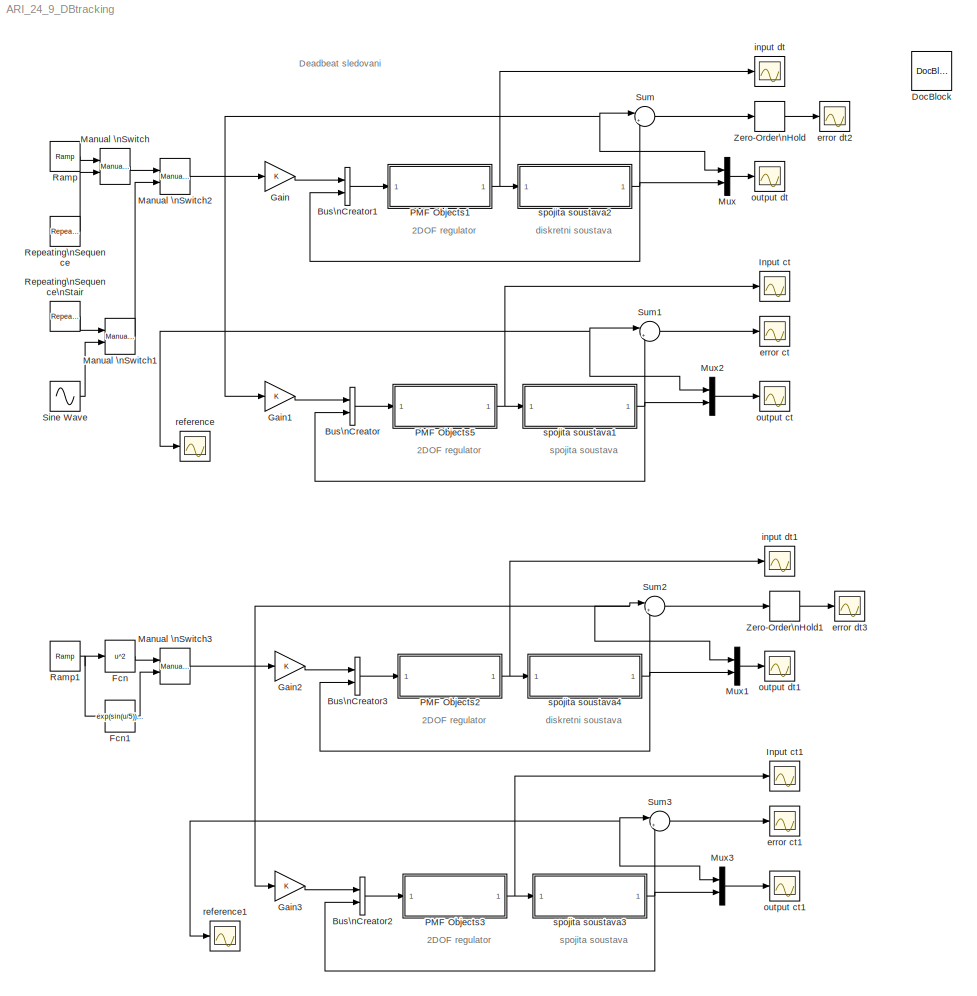
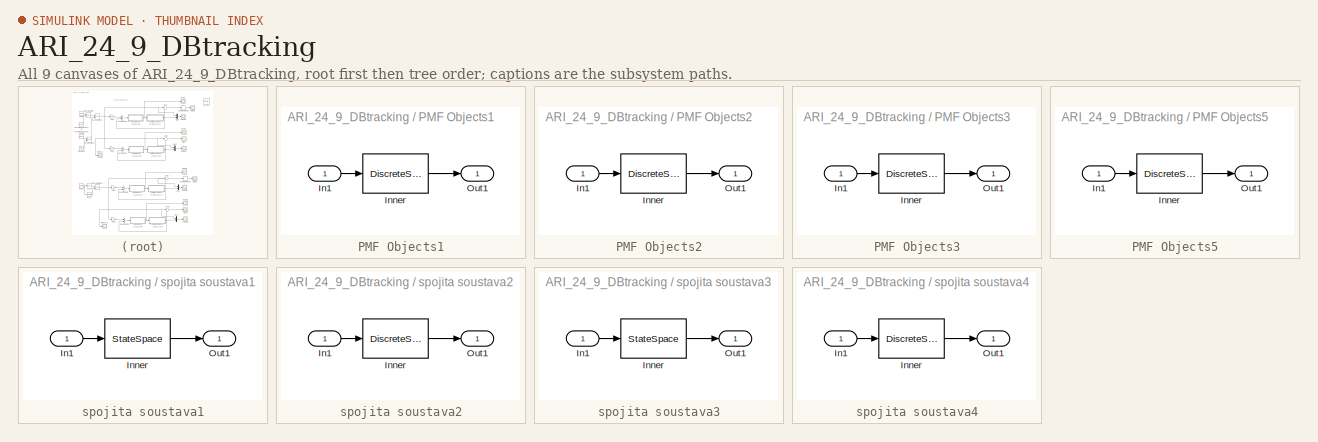
[diagram: thumbnail index - all 9 canvases of the model, root first then tree order]
MODEL ARI_24_9_DBtracking
KIND model
BLOCK [BusCreator] Bus\nCreator
  DisplayOption = bar
  Inputs = 2
  Ports = [2, 1]
  SID = 1
BLOCK [BusCreator] Bus\nCreator1
  DisplayOption = bar
  Inputs = 2
  Ports = [2, 1]
  SID = 2
BLOCK [BusCreator] Bus\nCreator2
  DisplayOption = bar
  Inputs = 2
  Ports = [2, 1]
  SID = 3
BLOCK [BusCreator] Bus\nCreator3
  DisplayOption = bar
  Inputs = 2
  Ports = [2, 1]
  SID = 4
BLOCK [Reference] DocBlock  REF=simulink/Model-Wide\nUtilities/DocBlock
  DocumentType = Text
  Ports = []
  SID = 76
  SourceBlock = simulink/Model-Wide\nUtilities/DocBlock
  SourceType = DocBlock
  UserData = DataTag0
  UserDataPersistent = on
BLOCK [Fcn] Fcn
  Expr = u^2
  SID = 5
BLOCK [Fcn] Fcn1
  Expr = exp(sin(u/5))*sin(u/2)
  SID = 6
BLOCK [Gain] Gain
  OutDataTypeStr = Inherit: Inherit via internal rule
  ParamDataTypeStr = Inherit: Inherit via internal rule
  SID = 7
  SampleTime = h
  SaturateOnIntegerOverflow = off
BLOCK [Gain] Gain1
  OutDataTypeStr = Inherit: Inherit via internal rule
  ParamDataTypeStr = Inherit: Inherit via internal rule
  SID = 8
  SaturateOnIntegerOverflow = off
BLOCK [Gain] Gain2
  OutDataTypeStr = Inherit: Inherit via internal rule
  ParamDataTypeStr = Inherit: Inherit via internal rule
  SID = 9
  SampleTime = h
  SaturateOnIntegerOverflow = off
BLOCK [Gain] Gain3
  OutDataTypeStr = Inherit: Inherit via internal rule
  ParamDataTypeStr = Inherit: Inherit via internal rule
  SID = 10
  SaturateOnIntegerOverflow = off
BLOCK [Scope] Input ct
  DataFormat = Array
  Floating = off
  NumInputPorts = 1
  Ports = [1]
  SID = 11
  SampleTime = 0
  SaveName = ScopeData1
  TickLabels = on
  TimeRange = 2
  YMax = 2000
  YMin = -2000
  ZoomMode = xonly
BLOCK [Scope] Input ct1
  DataFormat = Array
  Floating = off
  NumInputPorts = 1
  Ports = [1]
  SID = 12
  SampleTime = 0
  SaveName = ScopeData7
  TickLabels = on
  TimeRange = 2
  YMax = 2000
  YMin = -2000
BLOCK [Reference] Manual \nSwitch  REF=simulink/Signal\nRouting/Manual Switch
  Ports = [2, 1]
  SID = 13
  SourceBlock = simulink/Signal\nRouting/Manual Switch
  SourceType = Manual Switch
  action = 0
  sw = 1
  varsize = off
BLOCK [Reference] Manual \nSwitch1  REF=simulink/Signal\nRouting/Manual Switch
  Ports = [2, 1]
  SID = 14
  SourceBlock = simulink/Signal\nRouting/Manual Switch
  SourceType = Manual Switch
  action = 0
  sw = 0
  varsize = off
BLOCK [Reference] Manual \nSwitch2  REF=simulink/Signal\nRouting/Manual Switch
  Ports = [2, 1]
  SID = 15
  SourceBlock = simulink/Signal\nRouting/Manual Switch
  SourceType = Manual Switch
  action = 0
  sw = 1
  varsize = off
BLOCK [Reference] Manual \nSwitch3  REF=simulink/Signal\nRouting/Manual Switch
  Ports = [2, 1]
  SID = 16
  SourceBlock = simulink/Signal\nRouting/Manual Switch
  SourceType = Manual Switch
  action = 0
  sw = 1
  varsize = off
BLOCK [Mux] Mux
  DisplayOption = bar
  Inputs = 2
  Ports = [2, 1]
  SID = 18
BLOCK [Mux] Mux1
  DisplayOption = bar
  Inputs = 2
  Ports = [2, 1]
  SID = 19
BLOCK [Mux] Mux2
  DisplayOption = bar
  Inputs = 2
  Ports = [2, 1]
  SID = 20
BLOCK [Mux] Mux3
  DisplayOption = bar
  Inputs = 2
  Ports = [2, 1]
  SID = 21
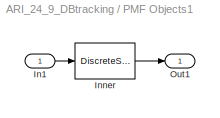
BLOCK [SubSystem] PMF Objects1
  FunctionWithSeparateData = off
  MaskCallbackString = |||
  MaskDescription = Polynomial matrix fraction description of a linear system.\n\nThis block represents a linear system defined by the polynomial matrix fraction of its transfer function.
  MaskDisplay = disp(Label);\n
  MaskEnableString = on,on,on,on
  MaskHelp = This block represents a linear system [<I>A,B,C,D</I>] defined by the polynomial matrix fraction (<I>PMF</I>) of its transfer function <I>T</I>.  \n<p>\n<b>Left Matrix Fraction</b> item of the popup menu <b>Type</b> indicates the transfer function in the form of <I>left PMF</I>:  \n<p>\n<I>T</I> = inv(<I>Q</I>) <I>P</I>.\n<p> \n<b>Right Matrix Fraction</b> item is used if the transfer function is ...<+1109ch>  <repeated x8 — deduplicated; at blocks: PMF Objects1, PMF Objects2, PMF Objects3, PMF Objects5, spojita soustava1, spojita soustava2, spojita soustava3, spojita soustava4>
  MaskHideContents = off
  MaskIconFrame = on
  MaskIconOpaque = on
  MaskIconRotate = none
  MaskIconUnits = autoscale
  MaskInitialization = Label = 'xxx';\n[A,B,C,D,Label,var] = polymask2(F, fvar, length(InCon));\nupdate;\n
  MaskPortRotate = default
  MaskPromptString = PMF Object:|Initial states:|Sample time (discrete time only):|Force variable:
  MaskStyleString = edit,edit,edit,popup(No change|s   (continous time)|p   (continous time)|z      (discrete time)|q      (discrete time)|d      (discrete time)|z^-1 (discrete time))
  MaskToolTipString = on,on,on,on
  MaskTunableValueString = on,on,on,on
  MaskType = PMF Block
  MaskValueString = [r -q]/p|[ ]|h|No change
  MaskVariables = F=&1;InCon=@2;SampTime=@3;fvar=@4;
  MaskVisibilityString = on,on,on,on
  MinAlgLoopOccurrences = off
  Opaque = off
  Ports = [1, 1]
  PropExecContextOutsideSubsystem = off
  RTWSystemCode = Auto
  RequestExecContextInheritance = off
  SID = 22
BLOCK [Inport] PMF Objects1/In1
  IconDisplay = Port number
  SID = 23
BLOCK [DiscreteStateSpace] PMF Objects1/Inner
  A = A
  B = B
  C = C
  D = D
  SID = 24
  SampleTime = SampTime
  X0 = InCon
BLOCK [Outport] PMF Objects1/Out1
  IconDisplay = Port number
  SID = 25
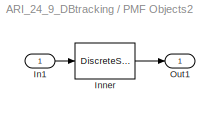
BLOCK [SubSystem] PMF Objects2
  FunctionWithSeparateData = off
  MaskCallbackString = |||
  MaskDescription = Polynomial matrix fraction description of a linear system.\n\nThis block represents a linear system defined by the polynomial matrix fraction of its transfer function.
  MaskDisplay = disp(Label);\n
  MaskEnableString = on,on,on,on
  MaskHideContents = off
  MaskIconFrame = on
  MaskIconOpaque = on
  MaskIconRotate = none
  MaskIconUnits = autoscale
  MaskInitialization = Label = 'xxx';\n[A,B,C,D,Label,var] = polymask2(F, fvar, length(InCon));\nupdate;\n
  MaskPortRotate = default
  MaskPromptString = PMF Object:|Initial states:|Sample time (discrete time only):|Force variable:
  MaskStyleString = edit,edit,edit,popup(No change|s   (continous time)|p   (continous time)|z      (discrete time)|q      (discrete time)|d      (discrete time)|z^-1 (discrete time))
  MaskToolTipString = on,on,on,on
  MaskTunableValueString = on,on,on,on
  MaskType = PMF Block
  MaskValueString = [r -q]/p|[ ]|h|No change
  MaskVariables = F=&1;InCon=@2;SampTime=@3;fvar=@4;
  MaskVisibilityString = on,on,on,on
  MinAlgLoopOccurrences = off
  Opaque = off
  Ports = [1, 1]
  PropExecContextOutsideSubsystem = off
  RTWSystemCode = Auto
  RequestExecContextInheritance = off
  SID = 26
BLOCK [Inport] PMF Objects2/In1
  IconDisplay = Port number
  SID = 27
BLOCK [DiscreteStateSpace] PMF Objects2/Inner
  A = A
  B = B
  C = C
  D = D
  SID = 28
  SampleTime = SampTime
  X0 = InCon
BLOCK [Outport] PMF Objects2/Out1
  IconDisplay = Port number
  SID = 29
BLOCK [SubSystem] PMF Objects3
  FunctionWithSeparateData = off
  MaskCallbackString = |||
  MaskDescription = Polynomial matrix fraction description of a linear system.\n\nThis block represents a linear system defined by the polynomial matrix fraction of its transfer function.
  MaskDisplay = disp(Label);\n
  MaskEnableString = on,on,on,on
  MaskHideContents = off
  MaskIconFrame = on
  MaskIconOpaque = on
  MaskIconRotate = none
  MaskIconUnits = autoscale
  MaskInitialization = Label = 'xxx';\n[A,B,C,D,Label,var] = polymask2(F, fvar, length(InCon));\nupdate;\n
  MaskPortRotate = default
  MaskPromptString = PMF Object:|Initial states:|Sample time (discrete time only):|Force variable:
  MaskStyleString = edit,edit,edit,popup(No change|s   (continous time)|p   (continous time)|z      (discrete time)|q      (discrete time)|d      (discrete time)|z^-1 (discrete time))
  MaskToolTipString = on,on,on,on
  MaskTunableValueString = on,on,on,on
  MaskType = PMF Block
  MaskValueString = [r -q]/p|[ ]|h|No change
  MaskVariables = F=&1;InCon=@2;SampTime=@3;fvar=@4;
  MaskVisibilityString = on,on,on,on
  MinAlgLoopOccurrences = off
  Opaque = off
  Ports = [1, 1]
  PropExecContextOutsideSubsystem = off
  RTWSystemCode = Auto
  RequestExecContextInheritance = off
  SID = 30
BLOCK [Inport] PMF Objects3/In1
  IconDisplay = Port number
  SID = 31
BLOCK [DiscreteStateSpace] PMF Objects3/Inner
  A = A
  B = B
  C = C
  D = D
  SID = 32
  SampleTime = SampTime
  X0 = InCon
BLOCK [Outport] PMF Objects3/Out1
  IconDisplay = Port number
  SID = 33
BLOCK [SubSystem] PMF Objects5
  FunctionWithSeparateData = off
  MaskCallbackString = |||
  MaskDescription = Polynomial matrix fraction description of a linear system.\n\nThis block represents a linear system defined by the polynomial matrix fraction of its transfer function.
  MaskDisplay = disp(Label);\n
  MaskEnableString = on,on,on,on
  MaskHideContents = off
  MaskIconFrame = on
  MaskIconOpaque = on
  MaskIconRotate = none
  MaskIconUnits = autoscale
  MaskInitialization = Label = 'xxx';\n[A,B,C,D,Label,var] = polymask2(F, fvar, length(InCon));\nupdate;\n
  MaskPortRotate = default
  MaskPromptString = PMF Object:|Initial states:|Sample time (discrete time only):|Force variable:
  MaskStyleString = edit,edit,edit,popup(No change|s   (continous time)|p   (continous time)|z      (discrete time)|q      (discrete time)|d      (discrete time)|z^-1 (discrete time))
  MaskToolTipString = on,on,on,on
  MaskTunableValueString = on,on,on,on
  MaskType = PMF Block
  MaskValueString = [r -q]/p|[ ]|h|No change
  MaskVariables = F=&1;InCon=@2;SampTime=@3;fvar=@4;
  MaskVisibilityString = on,on,on,on
  MinAlgLoopOccurrences = off
  Opaque = off
  Ports = [1, 1]
  PropExecContextOutsideSubsystem = off
  RTWSystemCode = Auto
  RequestExecContextInheritance = off
  SID = 34
BLOCK [Inport] PMF Objects5/In1
  IconDisplay = Port number
  SID = 35
BLOCK [DiscreteStateSpace] PMF Objects5/Inner
  A = A
  B = B
  C = C
  D = D
  SID = 36
  SampleTime = SampTime
  X0 = InCon
BLOCK [Outport] PMF Objects5/Out1
  IconDisplay = Port number
  SID = 37
BLOCK [Reference] Ramp  REF=simulink/Sources/Ramp
  Ports = [0, 1]
  SID = 38
  SourceBlock = simulink/Sources/Ramp
  SourceType = Ramp
  VectorParams1D = on
  X0 = 0
  slope = 1
  start = 0
BLOCK [Reference] Ramp1  REF=simulink/Sources/Ramp
  Ports = [0, 1]
  SID = 39
  SourceBlock = simulink/Sources/Ramp
  SourceType = Ramp
  VectorParams1D = on
  X0 = 0
  slope = 1
  start = 0
BLOCK [Reference] Repeating\nSequence  REF=simulink/Sources/Repeating\nSequence
  Ports = [0, 1]
  SID = 40
  SourceBlock = simulink/Sources/Repeating\nSequence
  SourceType = Repeating table
  rep_seq_t = [0 8]
  rep_seq_y = [0 5]
BLOCK [Reference] Repeating\nSequence\nStair  REF=simulink/Sources/Repeating\nSequence\nStair
  ConRadixGroup = Best Precision: Vector-wise
  LockScale = off
  OutDataType = float('double')
  OutDataTypeStr = float('double')
  OutMax = []
  OutMin = []
  OutScaling = 2^-12
  OutValues = [3 1  4 2   1].'
  OutputDataTypeScalingMode = Specify via dialog
  Ports = [0, 1]
  SID = 41
  SourceBlock = simulink/Sources/Repeating\nSequence\nStair
  SourceType = Repeating Sequence Stair
  tsamp = 10
BLOCK [Sin] Sine Wave
  Frequency = .5
  Ports = [0, 1]
  SID = 42
  SampleTime = 0
BLOCK [Sum] Sum
  IconShape = round
  InputSameDT = off
  Inputs = |+-
  OutDataTypeStr = Inherit: Inherit via internal rule
  Ports = [2, 1]
  SID = 43
  SaturateOnIntegerOverflow = off
BLOCK [Sum] Sum1
  IconShape = round
  InputSameDT = off
  Inputs = |+-
  OutDataTypeStr = Inherit: Inherit via internal rule
  Ports = [2, 1]
  SID = 44
  SaturateOnIntegerOverflow = off
BLOCK [Sum] Sum2
  IconShape = round
  InputSameDT = off
  Inputs = |+-
  OutDataTypeStr = Inherit: Inherit via internal rule
  Ports = [2, 1]
  SID = 45
  SaturateOnIntegerOverflow = off
BLOCK [Sum] Sum3
  IconShape = round
  InputSameDT = off
  Inputs = |+-
  OutDataTypeStr = Inherit: Inherit via internal rule
  Ports = [2, 1]
  SID = 46
  SaturateOnIntegerOverflow = off
BLOCK [ZeroOrderHold] Zero-Order\nHold
  SID = 77
  SampleTime = h
BLOCK [ZeroOrderHold] Zero-Order\nHold1
  SID = 79
  SampleTime = h
BLOCK [Scope] error ct
  DataFormat = Array
  Floating = off
  NumInputPorts = 1
  Ports = [1]
  SID = 47
  SampleTime = 0
  SaveName = ScopeData5
  TickLabels = on
  TimeRange = 2
  YMax = 2000
  YMin = -2000
BLOCK [Scope] error ct1
  DataFormat = Array
  Floating = off
  NumInputPorts = 1
  Ports = [1]
  SID = 48
  SampleTime = 0
  SaveName = ScopeData8
  TickLabels = on
  TimeRange = 2
  YMax = 2000
  YMin = -2000
BLOCK [Scope] error dt2
  DataFormat = Array
  Floating = off
  NumInputPorts = 1
  Ports = [1]
  SID = 78
  SampleTime = 0
  SaveName = ScopeData14
  TickLabels = on
  TimeRange = 2
  YMax = 2000
  YMin = -2000
  ZoomMode = xonly
BLOCK [Scope] error dt3
  DataFormat = Array
  Floating = off
  NumInputPorts = 1
  Ports = [1]
  SID = 80
  SampleTime = 0
  SaveName = ScopeData15
  TickLabels = on
  TimeRange = 2
  YMax = 2000
  YMin = -2000
  ZoomMode = xonly
BLOCK [Scope] input dt
  DataFormat = Array
  Floating = off
  NumInputPorts = 1
  Ports = [1]
  SID = 51
  SampleTime = 0
  TickLabels = on
  TimeRange = 2
  YMax = 2000
  YMin = -2000
  ZoomMode = xonly
BLOCK [Scope] input dt1
  DataFormat = Array
  Floating = off
  NumInputPorts = 1
  Ports = [1]
  SID = 52
  SampleTime = 0
  SaveName = ScopeData10
  TickLabels = on
  TimeRange = 2
  YMax = 2000
  YMin = -2000
  ZoomMode = xonly
BLOCK [Scope] output ct
  DataFormat = Array
  Floating = off
  NumInputPorts = 1
  Ports = [1]
  SID = 53
  SampleTime = 0
  SaveName = ScopeData2
  TickLabels = on
  TimeRange = 2
  YMax = 3
  YMin = -1
  ZoomMode = xonly
BLOCK [Scope] output ct1
  DataFormat = Array
  Floating = off
  NumInputPorts = 1
  Ports = [1]
  SID = 54
  SampleTime = 0
  SaveName = ScopeData11
  TickLabels = on
  TimeRange = 2
  YMax = 3
  YMin = -1
  ZoomMode = xonly
BLOCK [Scope] output dt
  DataFormat = Array
  Floating = off
  NumInputPorts = 1
  Ports = [1]
  SID = 55
  SampleTime = 0
  SaveName = ScopeData3
  TickLabels = on
  TimeRange = 2
  YMax = 3
  YMin = -1
BLOCK [Scope] output dt1
  DataFormat = Array
  Floating = off
  NumInputPorts = 1
  Ports = [1]
  SID = 56
  SampleTime = 0
  SaveName = ScopeData12
  TickLabels = on
  TimeRange = 2
  YMax = 3
  YMin = -1
BLOCK [Scope] reference
  DataFormat = Array
  Floating = off
  NumInputPorts = 1
  Ports = [1]
  SID = 57
  SampleTime = 0
  SaveName = ScopeData6
  TickLabels = on
  TimeRange = 2
  YMax = 2000
  YMin = -2000
  ZoomMode = xonly
BLOCK [Scope] reference1
  DataFormat = Array
  Floating = off
  NumInputPorts = 1
  Ports = [1]
  SID = 58
  SampleTime = 0
  SaveName = ScopeData13
  TickLabels = on
  TimeRange = 2
  YMax = 2000
  YMin = -2000
  ZoomMode = xonly
BLOCK [SubSystem] spojita soustava1
  FunctionWithSeparateData = off
  MaskCallbackString = |||
  MaskDescription = Polynomial matrix fraction description of a linear system.\n\nThis block represents a linear system defined by the polynomial matrix fraction of its transfer function.
  MaskDisplay = disp(Label);\n
  MaskEnableString = on,on,on,on
  MaskHideContents = off
  MaskIconFrame = on
  MaskIconOpaque = on
  MaskIconRotate = none
  MaskIconUnits = autoscale
  MaskInitialization = Label = 'xxx';\n[A,B,C,D,Label,var] = polymask2(F, fvar, length(InCon));\nupdate;\n
  MaskPortRotate = default
  MaskPromptString = PMF Object:|Initial states:|Sample time (discrete time only):|Force variable:
  MaskStyleString = edit,edit,edit,popup(No change|s   (continous time)|p   (continous time)|z      (discrete time)|q      (discrete time)|d      (discrete time)|z^-1 (discrete time))
  MaskToolTipString = on,on,on,on
  MaskTunableValueString = on,on,on,on
  MaskType = PMF Block
  MaskValueString = 1/s^2|[ ]|h|No change
  MaskVariables = F=&1;InCon=@2;SampTime=@3;fvar=@4;
  MaskVisibilityString = on,on,on,on
  MinAlgLoopOccurrences = off
  Opaque = off
  Ports = [1, 1]
  PropExecContextOutsideSubsystem = off
  RTWSystemCode = Auto
  RequestExecContextInheritance = off
  SID = 59
BLOCK [Inport] spojita soustava1/In1
  IconDisplay = Port number
  SID = 60
BLOCK [StateSpace] spojita soustava1/Inner
  A = A
  B = B
  C = C
  D = D
  SID = 61
  X0 = InCon
BLOCK [Outport] spojita soustava1/Out1
  IconDisplay = Port number
  SID = 62
BLOCK [SubSystem] spojita soustava2
  FunctionWithSeparateData = off
  MaskCallbackString = |||
  MaskDescription = Polynomial matrix fraction description of a linear system.\n\nThis block represents a linear system defined by the polynomial matrix fraction of its transfer function.
  MaskDisplay = disp(Label);\n
  MaskEnableString = on,on,on,on
  MaskHideContents = off
  MaskIconFrame = on
  MaskIconOpaque = on
  MaskIconRotate = none
  MaskIconUnits = autoscale
  MaskInitialization = Label = 'xxx';\n[A,B,C,D,Label,var] = polymask2(F, fvar, length(InCon));\nupdate;\n
  MaskPortRotate = default
  MaskPromptString = PMF Object:|Initial states:|Sample time (discrete time only):|Force variable:
  MaskStyleString = edit,edit,edit,popup(No change|s   (continous time)|p   (continous time)|z      (discrete time)|q      (discrete time)|d      (discrete time)|z^-1 (discrete time))
  MaskToolTipString = on,on,on,on
  MaskTunableValueString = on,on,on,on
  MaskType = PMF Block
  MaskValueString = b/a|[ ]|h|No change
  MaskVariables = F=&1;InCon=@2;SampTime=@3;fvar=@4;
  MaskVisibilityString = on,on,on,on
  MinAlgLoopOccurrences = off
  Opaque = off
  Ports = [1, 1]
  PropExecContextOutsideSubsystem = off
  RTWSystemCode = Auto
  RequestExecContextInheritance = off
  SID = 63
BLOCK [Inport] spojita soustava2/In1
  IconDisplay = Port number
  SID = 64
BLOCK [DiscreteStateSpace] spojita soustava2/Inner
  A = A
  B = B
  C = C
  D = D
  SID = 65
  SampleTime = SampTime
  X0 = InCon
BLOCK [Outport] spojita soustava2/Out1
  IconDisplay = Port number
  SID = 66
BLOCK [SubSystem] spojita soustava3
  FunctionWithSeparateData = off
  MaskCallbackString = |||
  MaskDescription = Polynomial matrix fraction description of a linear system.\n\nThis block represents a linear system defined by the polynomial matrix fraction of its transfer function.
  MaskDisplay = disp(Label);\n
  MaskEnableString = on,on,on,on
  MaskHideContents = off
  MaskIconFrame = on
  MaskIconOpaque = on
  MaskIconRotate = none
  MaskIconUnits = autoscale
  MaskInitialization = Label = 'xxx';\n[A,B,C,D,Label,var] = polymask2(F, fvar, length(InCon));\nupdate;\n
  MaskPortRotate = default
  MaskPromptString = PMF Object:|Initial states:|Sample time (discrete time only):|Force variable:
  MaskStyleString = edit,edit,edit,popup(No change|s   (continous time)|p   (continous time)|z      (discrete time)|q      (discrete time)|d      (discrete time)|z^-1 (discrete time))
  MaskToolTipString = on,on,on,on
  MaskTunableValueString = on,on,on,on
  MaskType = PMF Block
  MaskValueString = 1/s^2|[ ]|h|No change
  MaskVariables = F=&1;InCon=@2;SampTime=@3;fvar=@4;
  MaskVisibilityString = on,on,on,on
  MinAlgLoopOccurrences = off
  Opaque = off
  Ports = [1, 1]
  PropExecContextOutsideSubsystem = off
  RTWSystemCode = Auto
  RequestExecContextInheritance = off
  SID = 67
BLOCK [Inport] spojita soustava3/In1
  IconDisplay = Port number
  SID = 68
BLOCK [StateSpace] spojita soustava3/Inner
  A = A
  B = B
  C = C
  D = D
  SID = 69
  X0 = InCon
BLOCK [Outport] spojita soustava3/Out1
  IconDisplay = Port number
  SID = 70
BLOCK [SubSystem] spojita soustava4
  FunctionWithSeparateData = off
  MaskCallbackString = |||
  MaskDescription = Polynomial matrix fraction description of a linear system.\n\nThis block represents a linear system defined by the polynomial matrix fraction of its transfer function.
  MaskDisplay = disp(Label);\n
  MaskEnableString = on,on,on,on
  MaskHideContents = off
  MaskIconFrame = on
  MaskIconOpaque = on
  MaskIconRotate = none
  MaskIconUnits = autoscale
  MaskInitialization = Label = 'xxx';\n[A,B,C,D,Label,var] = polymask2(F, fvar, length(InCon));\nupdate;\n
  MaskPortRotate = default
  MaskPromptString = PMF Object:|Initial states:|Sample time (discrete time only):|Force variable:
  MaskStyleString = edit,edit,edit,popup(No change|s   (continous time)|p   (continous time)|z      (discrete time)|q      (discrete time)|d      (discrete time)|z^-1 (discrete time))
  MaskToolTipString = on,on,on,on
  MaskTunableValueString = on,on,on,on
  MaskType = PMF Block
  MaskValueString = b/a|[ ]|h|No change
  MaskVariables = F=&1;InCon=@2;SampTime=@3;fvar=@4;
  MaskVisibilityString = on,on,on,on
  MinAlgLoopOccurrences = off
  Opaque = off
  Ports = [1, 1]
  PropExecContextOutsideSubsystem = off
  RTWSystemCode = Auto
  RequestExecContextInheritance = off
  SID = 71
BLOCK [Inport] spojita soustava4/In1
  IconDisplay = Port number
  SID = 72
BLOCK [DiscreteStateSpace] spojita soustava4/Inner
  A = A
  B = B
  C = C
  D = D
  SID = 73
  SampleTime = SampTime
  X0 = InCon
BLOCK [Outport] spojita soustava4/Out1
  IconDisplay = Port number
  SID = 74
ANNOTATION (root): 2DOF regulator
ANNOTATION (root): Deadbeat sledovani
ANNOTATION (root): diskretni soustava
ANNOTATION (root): spojita soustava
LINE Bus\nCreator1:1 -> PMF Objects1:1
LINE Bus\nCreator2:1 -> PMF Objects3:1
LINE Bus\nCreator3:1 -> PMF Objects2:1
LINE Bus\nCreator:1 -> PMF Objects5:1
LINE Fcn1:1 -> Manual \nSwitch3:2
LINE Fcn:1 -> Manual \nSwitch3:1
LINE Gain1:1 -> Bus\nCreator:1
LINE Gain2:1 -> Bus\nCreator3:1
LINE Gain3:1 -> Bus\nCreator2:1
LINE Gain:1 -> Bus\nCreator1:1
LINE Manual \nSwitch1:1 -> Manual \nSwitch2:2
NET Manual \nSwitch2:1 -> Gain1:1, Gain:1, Mux2:1, Mux:1, Sum1:1, Sum:1, reference:1
NET Manual \nSwitch3:1 -> Gain2:1, Gain3:1, Mux1:1, Mux3:1, Sum2:1, Sum3:1, reference1:1
LINE Manual \nSwitch:1 -> Manual \nSwitch2:1
LINE Mux1:1 -> output dt1:1
LINE Mux2:1 -> output ct:1
LINE Mux3:1 -> output ct1:1
LINE Mux:1 -> output dt:1
LINE PMF Objects1/In1:1 -> PMF Objects1/Inner:1
LINE PMF Objects1/Inner:1 -> PMF Objects1/Out1:1
NET PMF Objects1:1 -> input dt:1, spojita soustava2:1
LINE PMF Objects2/In1:1 -> PMF Objects2/Inner:1
LINE PMF Objects2/Inner:1 -> PMF Objects2/Out1:1
NET PMF Objects2:1 -> input dt1:1, spojita soustava4:1
LINE PMF Objects3/In1:1 -> PMF Objects3/Inner:1
LINE PMF Objects3/Inner:1 -> PMF Objects3/Out1:1
NET PMF Objects3:1 -> Input ct1:1, spojita soustava3:1
LINE PMF Objects5/In1:1 -> PMF Objects5/Inner:1
LINE PMF Objects5/Inner:1 -> PMF Objects5/Out1:1
NET PMF Objects5:1 -> Input ct:1, spojita soustava1:1
NET Ramp1:1 -> Fcn1:1, Fcn:1
LINE Ramp:1 -> Manual \nSwitch:1
LINE Repeating\nSequence:1 -> Manual \nSwitch:2
LINE Repeating\nSequence\nStair:1 -> Manual \nSwitch1:1
LINE Sine Wave:1 -> Manual \nSwitch1:2
LINE Sum1:1 -> error ct:1
LINE Sum2:1 -> Zero-Order\nHold1:1
LINE Sum3:1 -> error ct1:1
LINE Sum:1 -> Zero-Order\nHold:1
LINE Zero-Order\nHold1:1 -> error dt3:1
LINE Zero-Order\nHold:1 -> error dt2:1
LINE spojita soustava1/In1:1 -> spojita soustava1/Inner:1
LINE spojita soustava1/Inner:1 -> spojita soustava1/Out1:1
NET spojita soustava1:1 -> Bus\nCreator:2, Mux2:2, Sum1:2
LINE spojita soustava2/In1:1 -> spojita soustava2/Inner:1
LINE spojita soustava2/Inner:1 -> spojita soustava2/Out1:1
NET spojita soustava2:1 -> Bus\nCreator1:2, Mux:2, Sum:2
LINE spojita soustava3/In1:1 -> spojita soustava3/Inner:1
LINE spojita soustava3/Inner:1 -> spojita soustava3/Out1:1
NET spojita soustava3:1 -> Bus\nCreator2:2, Mux3:2, Sum3:2
LINE spojita soustava4/In1:1 -> spojita soustava4/Inner:1
LINE spojita soustava4/Inner:1 -> spojita soustava4/Out1:1
NET spojita soustava4:1 -> Bus\nCreator3:2, Mux1:2, Sum2:2
note: NET lines group one-source signal fan-out (src -> all destinations, sorted); 1:1 wires keep LINE
